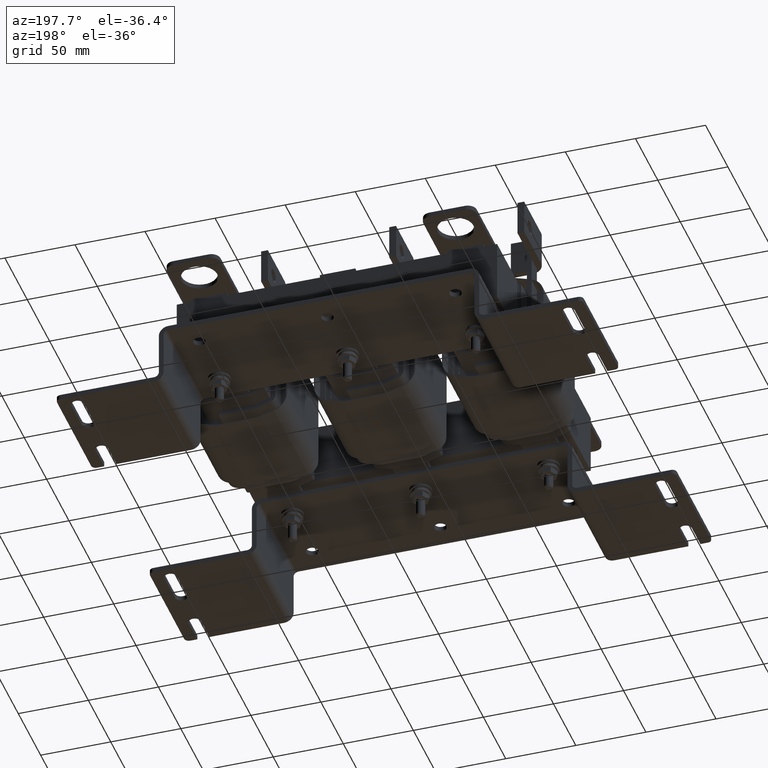
[diagram: clean part render]
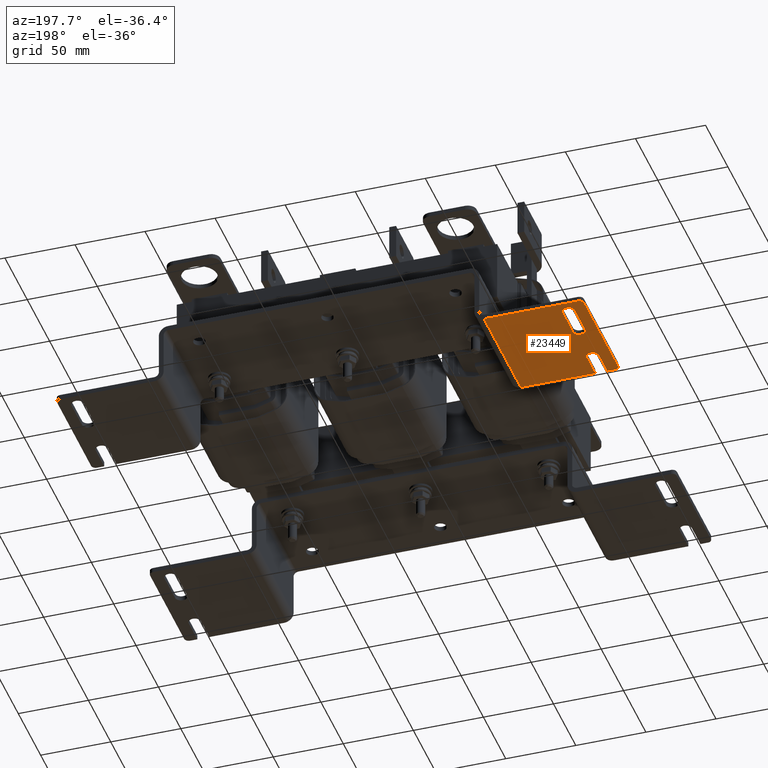
[diagram: same view with one face highlighted and labeled with its STEP entity id]
A machine part, auxiliary view. The second image highlights one B-rep face of the part: STEP entity #23449.
In plain terms, the highlighted planar face has unit normal (-0, -0, -1).
Its self-contained STEP definition (entity closure, byte-faithful):
#849=FACE_BOUND('',#3460,.T.);
#1207=PLANE('',#25086);
#2133=FACE_OUTER_BOUND('',#3459,.T.);
#3459=EDGE_LOOP('',(#18243,#18244,#18245,#18246,#18247,#18248,#18249,#18250,
#18251,#18252));
#3460=EDGE_LOOP('',(#18253,#18254,#18255,#18256));
#5188=LINE('',#37980,#7567);
#5193=LINE('',#37994,#7572);
#5196=LINE('',#38004,#7575);
#5200=LINE('',#38013,#7579);
#5220=LINE('',#38069,#7599);
#5225=LINE('',#38078,#7604);
#5246=LINE('',#38134,#7625);
#5248=LINE('',#38140,#7627);
#5252=LINE('',#38155,#7631);
#7567=VECTOR('',#28258,0.393700787401575);
#7572=VECTOR('',#28271,0.393700787401575);
#7575=VECTOR('',#28282,0.393700787401575);
#7579=VECTOR('',#28288,0.393700787401575);
#7599=VECTOR('',#28342,0.19368);
#7604=VECTOR('',#28349,0.19368);
#7625=VECTOR('',#28402,0.393700787401575);
#7627=VECTOR('',#28410,0.393700787401575);
#7631=VECTOR('',#28428,0.393700787401575);
#9152=CIRCLE('',#25034,0.17);
#9154=CIRCLE('',#25038,0.17);
#9156=CIRCLE('',#25043,0.17);
#9170=CIRCLE('',#25074,0.125);
#9171=CIRCLE('',#25077,0.125);
#10678=VERTEX_POINT('',#37978);
#10679=VERTEX_POINT('',#37979);
#10682=VERTEX_POINT('',#37987);
#10684=VERTEX_POINT('',#37993);
#10686=VERTEX_POINT('',#38002);
#10687=VERTEX_POINT('',#38003);
#10690=VERTEX_POINT('',#38011);
#10691=VERTEX_POINT('',#38012);
#10710=VERTEX_POINT('',#38068);
#10713=VERTEX_POINT('',#38076);
#10730=VERTEX_POINT('',#38126);
#10731=VERTEX_POINT('',#38127);
#10732=VERTEX_POINT('',#38132);
#10733=VERTEX_POINT('',#38136);
#13392=EDGE_CURVE('',#10678,#10679,#5188,.T.);
#13396=EDGE_CURVE('',#10679,#10682,#9152,.T.);
#13399=EDGE_CURVE('',#10682,#10684,#5193,.T.);
#13402=EDGE_CURVE('',#10684,#10678,#9154,.T.);
#13404=EDGE_CURVE('',#10686,#10687,#5196,.T.);
#13408=EDGE_CURVE('',#10690,#10691,#5200,.T.);
#13412=EDGE_CURVE('',#10691,#10686,#9156,.T.);
#13436=EDGE_CURVE('',#10690,#10710,#5220,.T.);
#13441=EDGE_CURVE('',#10713,#10687,#5225,.T.);
#13465=EDGE_CURVE('',#10730,#10731,#9170,.T.);
#13469=EDGE_CURVE('',#10732,#10730,#5246,.T.);
#13470=EDGE_CURVE('',#10733,#10713,#9171,.T.);
#13472=EDGE_CURVE('',#10732,#10710,#5248,.T.);
#13480=EDGE_CURVE('',#10731,#10733,#5252,.T.);
#18243=ORIENTED_EDGE('',*,*,#13404,.T.);
#18244=ORIENTED_EDGE('',*,*,#13441,.F.);
#18245=ORIENTED_EDGE('',*,*,#13470,.F.);
#18246=ORIENTED_EDGE('',*,*,#13480,.F.);
#18247=ORIENTED_EDGE('',*,*,#13465,.F.);
#18248=ORIENTED_EDGE('',*,*,#13469,.F.);
#18249=ORIENTED_EDGE('',*,*,#13472,.T.);
#18250=ORIENTED_EDGE('',*,*,#13436,.F.);
#18251=ORIENTED_EDGE('',*,*,#13408,.T.);
#18252=ORIENTED_EDGE('',*,*,#13412,.T.);
#18253=ORIENTED_EDGE('',*,*,#13399,.T.);
#18254=ORIENTED_EDGE('',*,*,#13402,.T.);
#18255=ORIENTED_EDGE('',*,*,#13392,.T.);
#18256=ORIENTED_EDGE('',*,*,#13396,.T.);
#23449=ADVANCED_FACE('',(#2133,#849),#1207,.T.);
#25034=AXIS2_PLACEMENT_3D('',#37988,#28264,#28265);
#25038=AXIS2_PLACEMENT_3D('',#37999,#28276,#28277);
#25043=AXIS2_PLACEMENT_3D('',#38020,#28294,#28295);
#25074=AXIS2_PLACEMENT_3D('',#38128,#28395,#28396);
#25077=AXIS2_PLACEMENT_3D('',#38137,#28405,#28406);
#25086=AXIS2_PLACEMENT_3D('',#38156,#28429,#28430);
#28258=DIRECTION('',(1.69074372530957E-16,1.,-1.73610681956307E-16));
#28264=DIRECTION('center_axis',(1.84447837511825E-15,1.73610681956306E-16,
1.));
#28265=DIRECTION('ref_axis',(-1.,-2.151855650394E-16,1.74838271594513E-15));
#28271=DIRECTION('',(-5.53334310101314E-16,-1.,1.73610681956307E-16));
#28276=DIRECTION('center_axis',(1.84447837511825E-15,1.73610681956306E-16,
1.));
#28277=DIRECTION('ref_axis',(1.,2.151855650394E-16,-1.74838271594513E-15));
#28282=DIRECTION('',(2.15185565039401E-16,-1.,1.73610681956306E-16));
#28288=DIRECTION('',(-2.15185565039401E-16,1.,-1.73610681956306E-16));
#28294=DIRECTION('center_axis',(1.84447837511825E-15,1.73610681956306E-16,
1.));
#28295=DIRECTION('ref_axis',(-1.,-2.151855650394E-16,1.74838271594513E-15));
#28342=DIRECTION('',(1.,3.09495236852085E-16,-1.82579662643923E-15));
#28349=DIRECTION('',(1.,3.09495236852085E-16,-1.82579662643923E-15));
#28395=DIRECTION('center_axis',(1.84447837511825E-15,1.73610681956306E-16,
1.));
#28396=DIRECTION('ref_axis',(-0.707106781186546,0.70710678118655,1.97806923928665E-15));
#28402=DIRECTION('',(-1.,-5.6238009903905E-16,1.76456428648186E-15));
#28405=DIRECTION('center_axis',(1.84447837511825E-15,1.73610681956306E-16,
1.));
#28406=DIRECTION('ref_axis',(-0.707106781186546,-0.707106781186549,0.));
#28410=DIRECTION('',(3.09495236852085E-16,-1.,1.73610681956306E-16));
#28428=DIRECTION('',(4.54267762859373E-16,-1.,1.64722710844797E-16));
#28429=DIRECTION('center_axis',(-1.84447837511825E-15,-1.73610681956306E-16,
-1.));
#28430=DIRECTION('ref_axis',(-1.,-2.38966327805718E-17,1.84447837511825E-15));
#37978=CARTESIAN_POINT('',(-2.225,1.965,-1.6155));
#37979=CARTESIAN_POINT('',(-2.225,2.875,-1.6155));
#37980=CARTESIAN_POINT('',(-2.225,2.25,-1.6155));
#37987=CARTESIAN_POINT('',(-2.565,2.875,-1.6155));
#37988=CARTESIAN_POINT('Origin',(-2.395,2.875,-1.6155));
#37993=CARTESIAN_POINT('',(-2.565,1.965,-1.6155));
#37994=CARTESIAN_POINT('',(-2.565,1.795,-1.6155));
#37999=CARTESIAN_POINT('Origin',(-2.395,1.965,-1.6155));
#38002=CARTESIAN_POINT('',(-2.565,0.75,-1.6155));
#38003=CARTESIAN_POINT('',(-2.565,-6.26350121029079E-16,-1.6155));
#38004=CARTESIAN_POINT('',(-2.565,0.764659543391783,-1.6155));
#38011=CARTESIAN_POINT('',(-2.225,-5.21121740499371E-16,-1.6155));
#38012=CARTESIAN_POINT('',(-2.225,0.75,-1.6155));
#38013=CARTESIAN_POINT('',(-2.225,1.1875,-1.6155));
#38020=CARTESIAN_POINT('Origin',(-2.395,0.75,-1.6155));
#38068=CARTESIAN_POINT('',(-0.1345,1.25878052139913E-16,-1.6155));
#38069=CARTESIAN_POINT('',(0.473963665147271,3.14194658300555E-16,-1.6155));
#38076=CARTESIAN_POINT('',(-2.775,-6.91344120768017E-16,-1.61549999999999));
#38078=CARTESIAN_POINT('',(0.473963665147271,3.14194658300555E-16,-1.6155));
#38126=CARTESIAN_POINT('',(-2.775,3.25,-1.6155));
#38127=CARTESIAN_POINT('',(-2.9,3.125,-1.6155));
#38128=CARTESIAN_POINT('Origin',(-2.775,3.125,-1.6155));
#38132=CARTESIAN_POINT('',(-0.134500000000001,3.25,-1.6155));
#38134=CARTESIAN_POINT('',(-0.134500000000001,3.25,-1.6155));
#38136=CARTESIAN_POINT('',(-2.9,0.125,-1.61549999999999));
#38137=CARTESIAN_POINT('Origin',(-2.775,0.124999999999999,-1.61549999999999));
#38140=CARTESIAN_POINT('',(-0.134500000000001,1.625,-1.6155));
#38155=CARTESIAN_POINT('',(-2.9,3.25,-1.6155));
#38156=CARTESIAN_POINT('Origin',(-1.36513408371318,1.625,-1.6155));